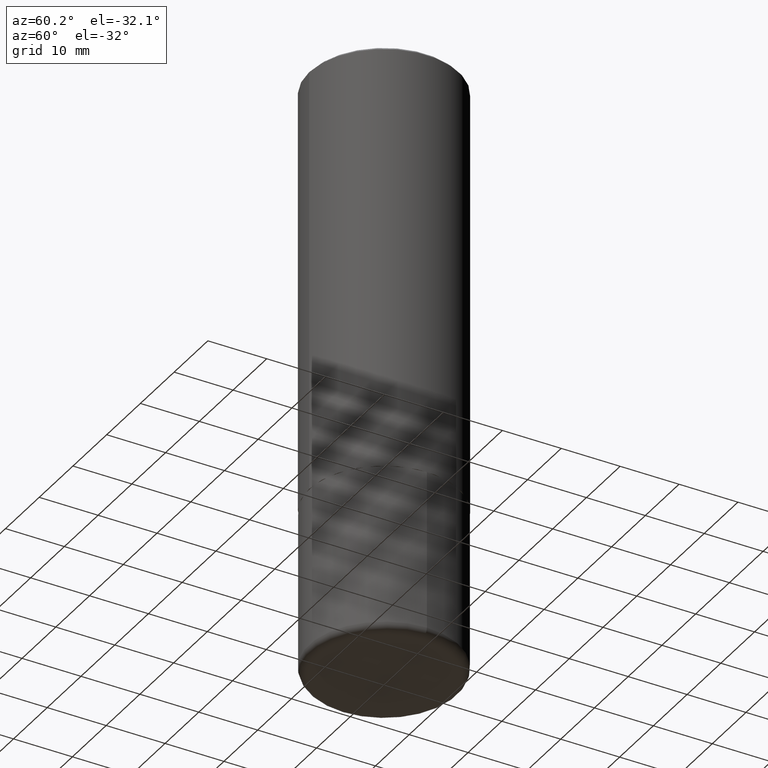
[diagram: clean part render]
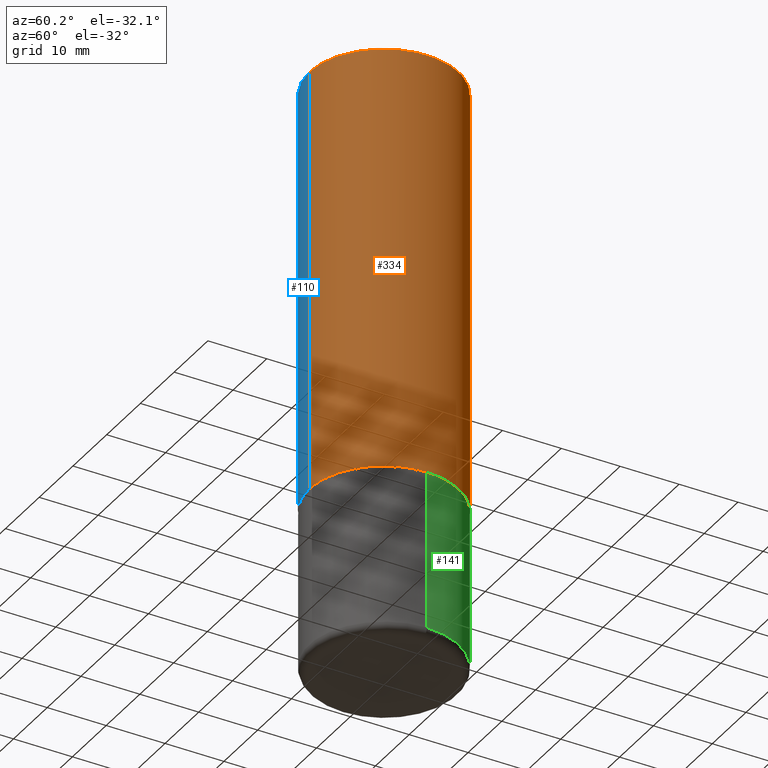
[diagram: same view with three faces highlighted in distinct colors, each labeled with its STEP entity id]
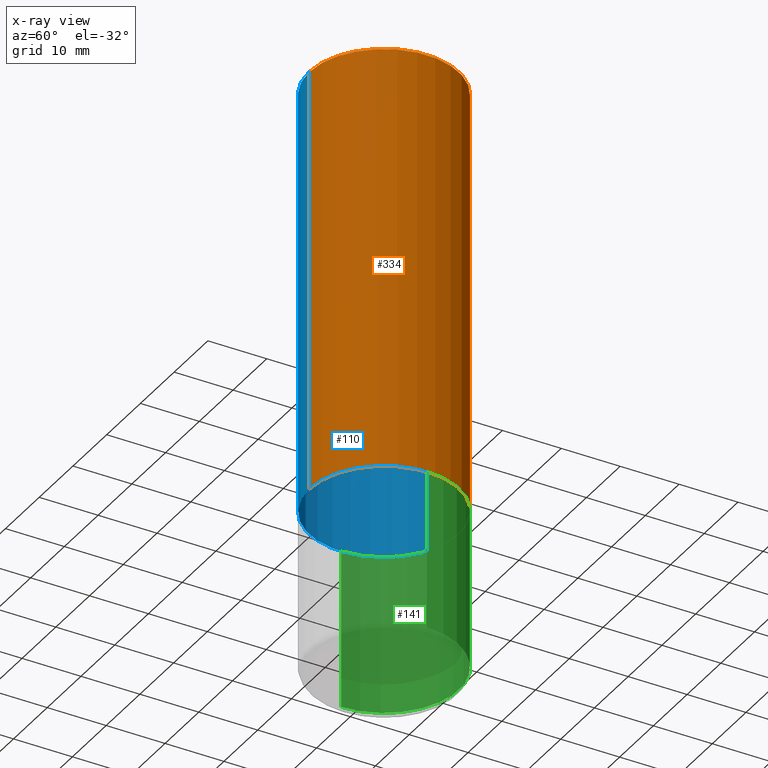
[diagram: x-ray of the same camera — body ghosted, the three highlighted faces saturated]
A machine part, auxiliary view with three faces highlighted in distinct colors.
The next image is the same camera in x-ray (body ghosted, the three faces saturated) — at least one of them is partly hidden behind the body in this view.
Their STEP definitions:

[orange] entity #334 — the highlighted cylindrical surface (partial cylindrical patch) has radius 12.7 mm, axis along (-0, 0, 1).
#2 = EDGE_CURVE ( 'NONE', #23, #84, #356, .T. ) ;
#19 = ORIENTED_EDGE ( 'NONE', *, *, #198, .F. ) ;
#23 = VERTEX_POINT ( 'NONE', #379 ) ;
#26 = EDGE_CURVE ( 'NONE', #155, #84, #203, .T. ) ;
#44 = AXIS2_PLACEMENT_3D ( 'NONE', #241, #177, #175 ) ;
#49 = AXIS2_PLACEMENT_3D ( 'NONE', #412, #125, #212 ) ;
#60 = FACE_OUTER_BOUND ( 'NONE', #101, .T. ) ;
#63 = CARTESIAN_POINT ( 'NONE',  ( 4.890368677246865823E-31, -6.983777425164860418E-17, -0.02000000000000010797 ) ) ;
#71 = CARTESIAN_POINT ( 'NONE',  ( -3.491481338843134539E-15, -0.5000000000000002220, 1.745944356291206674E-15 ) ) ;
#84 = VERTEX_POINT ( 'NONE', #107 ) ;
#95 = ORIENTED_EDGE ( 'NONE', *, *, #26, .F. ) ;
#101 = EDGE_LOOP ( 'NONE', ( #188, #250, #95, #19 ) ) ;
#107 = CARTESIAN_POINT ( 'NONE',  ( 3.491481338843133750E-15, 0.5000000000000000000, -0.02000000000000185310 ) ) ;
#125 = DIRECTION ( 'NONE',  ( -2.445184338623419792E-29, 3.491888712582412164E-15, 1.000000000000000000 ) ) ;
#155 = VERTEX_POINT ( 'NONE', #302 ) ;
#156 = DIRECTION ( 'NONE',  ( -2.445184338623420072E-29, 3.491888712582412558E-15, 1.000000000000000000 ) ) ;
#160 = DIRECTION ( 'NONE',  ( -2.445184338623419792E-29, 3.491888712582412164E-15, 1.000000000000000000 ) ) ;
#170 = VECTOR ( 'NONE', #156, 39.37007874015748143 ) ;
#175 = DIRECTION ( 'NONE',  ( -6.982962677686265922E-15, -1.000000000000000000, 3.491888712582411769E-15 ) ) ;
#176 = CIRCLE ( 'NONE', #49, 0.5000000000000003331 ) ;
#177 = DIRECTION ( 'NONE',  ( -2.445184338623419792E-29, 3.491888712582412164E-15, 1.000000000000000000 ) ) ;
#188 = ORIENTED_EDGE ( 'NONE', *, *, #245, .T. ) ;
#198 = EDGE_CURVE ( 'NONE', #320, #155, #359, .T. ) ;
#203 = CIRCLE ( 'NONE', #383, 0.5000000000000001110 ) ;
#212 = DIRECTION ( 'NONE',  ( -6.982962677686265922E-15, -1.000000000000000000, 3.278217592397113496E-15 ) ) ;
#241 = CARTESIAN_POINT ( 'NONE',  ( 0.000000000000000000, 0.000000000000000000, 0.000000000000000000 ) ) ;
#245 = EDGE_CURVE ( 'NONE', #320, #23, #176, .T. ) ;
#250 = ORIENTED_EDGE ( 'NONE', *, *, #2, .T. ) ;
#264 = DIRECTION ( 'NONE',  ( -2.445184338623420072E-29, 3.491888712582412558E-15, 1.000000000000000000 ) ) ;
#271 = CARTESIAN_POINT ( 'NONE',  ( -3.491481338843065119E-15, -0.5000000000000103251, -2.873999999999998334 ) ) ;
#302 = CARTESIAN_POINT ( 'NONE',  ( -3.430248998885765387E-15, -0.5000000000000001110, -0.01999999999999835937 ) ) ;
#310 = VECTOR ( 'NONE', #264, 39.37007874015748143 ) ;
#320 = VERTEX_POINT ( 'NONE', #271 ) ;
#334 = ADVANCED_FACE ( 'NONE', ( #60 ), #367, .T. ) ;
#353 = CARTESIAN_POINT ( 'NONE',  ( 3.552713678800501718E-15, 0.5000000000000002220, -1.745944356291206674E-15 ) ) ;
#354 = DIRECTION ( 'NONE',  ( -6.982962677686265133E-15, -1.000000000000000000, 3.491643216902135619E-15 ) ) ;
#356 = LINE ( 'NONE', #353, #170 ) ;
#359 = LINE ( 'NONE', #71, #310 ) ;
#367 = CYLINDRICAL_SURFACE ( 'NONE', #44, 0.5000000000000002220 ) ;
#379 = CARTESIAN_POINT ( 'NONE',  ( 3.552713678800538006E-15, 0.4999999999999903411, -2.874000000000001442 ) ) ;
#383 = AXIS2_PLACEMENT_3D ( 'NONE', #63, #160, #354 ) ;
#412 = CARTESIAN_POINT ( 'NONE',  ( 7.027459789203708394E-29, -1.003568815996185455E-14, -2.874000000000000110 ) ) ;

[blue] entity #110 — the highlighted cylindrical surface (partial cylindrical patch) has radius 12.7 mm, axis along (-0, 0, 1).
#2 = EDGE_CURVE ( 'NONE', #23, #84, #356, .T. ) ;
#12 = CYLINDRICAL_SURFACE ( 'NONE', #209, 0.5000000000000002220 ) ;
#17 = ORIENTED_EDGE ( 'NONE', *, *, #2, .F. ) ;
#18 = DIRECTION ( 'NONE',  ( -6.982962677686265133E-15, -1.000000000000000000, 3.491643216902135619E-15 ) ) ;
#23 = VERTEX_POINT ( 'NONE', #379 ) ;
#27 = ORIENTED_EDGE ( 'NONE', *, *, #375, .F. ) ;
#71 = CARTESIAN_POINT ( 'NONE',  ( -3.491481338843134539E-15, -0.5000000000000002220, 1.745944356291206674E-15 ) ) ;
#78 = DIRECTION ( 'NONE',  ( -2.445184338623419792E-29, 3.491888712582412164E-15, 1.000000000000000000 ) ) ;
#80 = DIRECTION ( 'NONE',  ( -2.445184338623419792E-29, 3.491888712582412164E-15, 1.000000000000000000 ) ) ;
#84 = VERTEX_POINT ( 'NONE', #107 ) ;
#106 = FACE_OUTER_BOUND ( 'NONE', #252, .T. ) ;
#107 = CARTESIAN_POINT ( 'NONE',  ( 3.491481338843133750E-15, 0.5000000000000000000, -0.02000000000000185310 ) ) ;
#109 = AXIS2_PLACEMENT_3D ( 'NONE', #272, #381, #18 ) ;
#110 = ADVANCED_FACE ( 'NONE', ( #106 ), #12, .T. ) ;
#124 = ORIENTED_EDGE ( 'NONE', *, *, #227, .T. ) ;
#155 = VERTEX_POINT ( 'NONE', #302 ) ;
#156 = DIRECTION ( 'NONE',  ( -2.445184338623420072E-29, 3.491888712582412558E-15, 1.000000000000000000 ) ) ;
#170 = VECTOR ( 'NONE', #156, 39.37007874015748143 ) ;
#198 = EDGE_CURVE ( 'NONE', #320, #155, #359, .T. ) ;
#209 = AXIS2_PLACEMENT_3D ( 'NONE', #258, #78, #391 ) ;
#215 = ORIENTED_EDGE ( 'NONE', *, *, #198, .T. ) ;
#227 = EDGE_CURVE ( 'NONE', #23, #320, #238, .T. ) ;
#238 = CIRCLE ( 'NONE', #290, 0.5000000000000003331 ) ;
#252 = EDGE_LOOP ( 'NONE', ( #17, #124, #215, #27 ) ) ;
#258 = CARTESIAN_POINT ( 'NONE',  ( 0.000000000000000000, 0.000000000000000000, 0.000000000000000000 ) ) ;
#264 = DIRECTION ( 'NONE',  ( -2.445184338623420072E-29, 3.491888712582412558E-15, 1.000000000000000000 ) ) ;
#271 = CARTESIAN_POINT ( 'NONE',  ( -3.491481338843065119E-15, -0.5000000000000103251, -2.873999999999998334 ) ) ;
#272 = CARTESIAN_POINT ( 'NONE',  ( 4.890368677246865823E-31, -6.983777425164860418E-17, -0.02000000000000010797 ) ) ;
#290 = AXIS2_PLACEMENT_3D ( 'NONE', #335, #80, #342 ) ;
#302 = CARTESIAN_POINT ( 'NONE',  ( -3.430248998885765387E-15, -0.5000000000000001110, -0.01999999999999835937 ) ) ;
#310 = VECTOR ( 'NONE', #264, 39.37007874015748143 ) ;
#320 = VERTEX_POINT ( 'NONE', #271 ) ;
#335 = CARTESIAN_POINT ( 'NONE',  ( 7.027459789203708394E-29, -1.003568815996185455E-14, -2.874000000000000110 ) ) ;
#342 = DIRECTION ( 'NONE',  ( -6.982962677686265922E-15, -1.000000000000000000, 3.278217592397113496E-15 ) ) ;
#353 = CARTESIAN_POINT ( 'NONE',  ( 3.552713678800501718E-15, 0.5000000000000002220, -1.745944356291206674E-15 ) ) ;
#356 = LINE ( 'NONE', #353, #170 ) ;
#359 = LINE ( 'NONE', #71, #310 ) ;
#363 = CIRCLE ( 'NONE', #109, 0.5000000000000001110 ) ;
#375 = EDGE_CURVE ( 'NONE', #84, #155, #363, .T. ) ;
#379 = CARTESIAN_POINT ( 'NONE',  ( 3.552713678800538006E-15, 0.4999999999999903411, -2.874000000000001442 ) ) ;
#381 = DIRECTION ( 'NONE',  ( -2.445184338623419792E-29, 3.491888712582412164E-15, 1.000000000000000000 ) ) ;
#391 = DIRECTION ( 'NONE',  ( -6.982962677686265922E-15, -1.000000000000000000, 3.491888712582411769E-15 ) ) ;

[green] entity #141 — the highlighted cylindrical surface (partial cylindrical patch) has radius 12.7 mm, axis along (-0, 0, 1).
#24 = ORIENTED_EDGE ( 'NONE', *, *, #303, .T. ) ;
#38 = AXIS2_PLACEMENT_3D ( 'NONE', #116, #53, #211 ) ;
#40 = CYLINDRICAL_SURFACE ( 'NONE', #121, 0.5000000000000000000 ) ;
#51 = CARTESIAN_POINT ( 'NONE',  ( 0.5000000000000000000, -1.352949018801717646E-14, -2.875000000000000000 ) ) ;
#53 = DIRECTION ( 'NONE',  ( -2.445468806185136597E-29, 3.491481338843145583E-15, 1.000000000000000000 ) ) ;
#56 = ORIENTED_EDGE ( 'NONE', *, *, #414, .F. ) ;
#87 = EDGE_CURVE ( 'NONE', #372, #388, #204, .T. ) ;
#97 = EDGE_CURVE ( 'NONE', #372, #253, #199, .T. ) ;
#111 = CARTESIAN_POINT ( 'NONE',  ( 9.635147096369438236E-29, -1.375643647504199401E-14, -3.939999999999999947 ) ) ;
#116 = CARTESIAN_POINT ( 'NONE',  ( 7.030722817782267716E-29, -1.003800884917404311E-14, -2.875000000000000000 ) ) ;
#121 = AXIS2_PLACEMENT_3D ( 'NONE', #395, #205, #237 ) ;
#141 = ADVANCED_FACE ( 'NONE', ( #167 ), #40, .T. ) ;
#162 = VECTOR ( 'NONE', #373, 39.37007874015748143 ) ;
#167 = FACE_OUTER_BOUND ( 'NONE', #338, .T. ) ;
#172 = DIRECTION ( 'NONE',  ( 1.000000000000000000, -6.982962677686265133E-15, 0.000000000000000000 ) ) ;
#178 = ORIENTED_EDGE ( 'NONE', *, *, #97, .F. ) ;
#194 = VERTEX_POINT ( 'NONE', #231 ) ;
#199 = LINE ( 'NONE', #366, #244 ) ;
#204 = CIRCLE ( 'NONE', #405, 0.5000000000000001110 ) ;
#205 = DIRECTION ( 'NONE',  ( -2.445468806185136597E-29, 3.491481338843145583E-15, 1.000000000000000000 ) ) ;
#207 = CARTESIAN_POINT ( 'NONE',  ( -0.5000000000000000000, 3.552713678800500929E-15, -2.459467545127452891E-29 ) ) ;
#211 = DIRECTION ( 'NONE',  ( 1.000000000000000000, -6.982962677686266711E-15, 0.000000000000000000 ) ) ;
#225 = ORIENTED_EDGE ( 'NONE', *, *, #87, .T. ) ;
#231 = CARTESIAN_POINT ( 'NONE',  ( -0.5000000000000000000, -8.344508983307518419E-15, -2.875000000000000000 ) ) ;
#234 = DIRECTION ( 'NONE',  ( -2.445468806185136597E-29, 3.491481338843145583E-15, 1.000000000000000000 ) ) ;
#237 = DIRECTION ( 'NONE',  ( 1.000000000000000000, -6.982962677686266711E-15, 4.876176775795935793E-29 ) ) ;
#244 = VECTOR ( 'NONE', #393, 39.37007874015748143 ) ;
#253 = VERTEX_POINT ( 'NONE', #51 ) ;
#269 = CARTESIAN_POINT ( 'NONE',  ( 0.5000000000000001110, -1.724791781388512737E-14, -3.939999999999999947 ) ) ;
#274 = CIRCLE ( 'NONE', #38, 0.5000000000000000000 ) ;
#303 = EDGE_CURVE ( 'NONE', #388, #194, #308, .T. ) ;
#308 = LINE ( 'NONE', #207, #162 ) ;
#336 = CARTESIAN_POINT ( 'NONE',  ( -0.5000000000000001110, -1.020372279624149151E-14, -3.939999999999999947 ) ) ;
#338 = EDGE_LOOP ( 'NONE', ( #225, #24, #56, #178 ) ) ;
#366 = CARTESIAN_POINT ( 'NONE',  ( 0.5000000000000000000, -3.491481338843133355E-15, 2.438088387897967896E-29 ) ) ;
#372 = VERTEX_POINT ( 'NONE', #269 ) ;
#373 = DIRECTION ( 'NONE',  ( -2.445468806185136877E-29, 3.491481338843145188E-15, 1.000000000000000000 ) ) ;
#388 = VERTEX_POINT ( 'NONE', #336 ) ;
#393 = DIRECTION ( 'NONE',  ( -2.445468806185136877E-29, 3.491481338843145188E-15, 1.000000000000000000 ) ) ;
#395 = CARTESIAN_POINT ( 'NONE',  ( 0.000000000000000000, 0.000000000000000000, 0.000000000000000000 ) ) ;
#405 = AXIS2_PLACEMENT_3D ( 'NONE', #111, #234, #172 ) ;
#414 = EDGE_CURVE ( 'NONE', #253, #194, #274, .T. ) ;